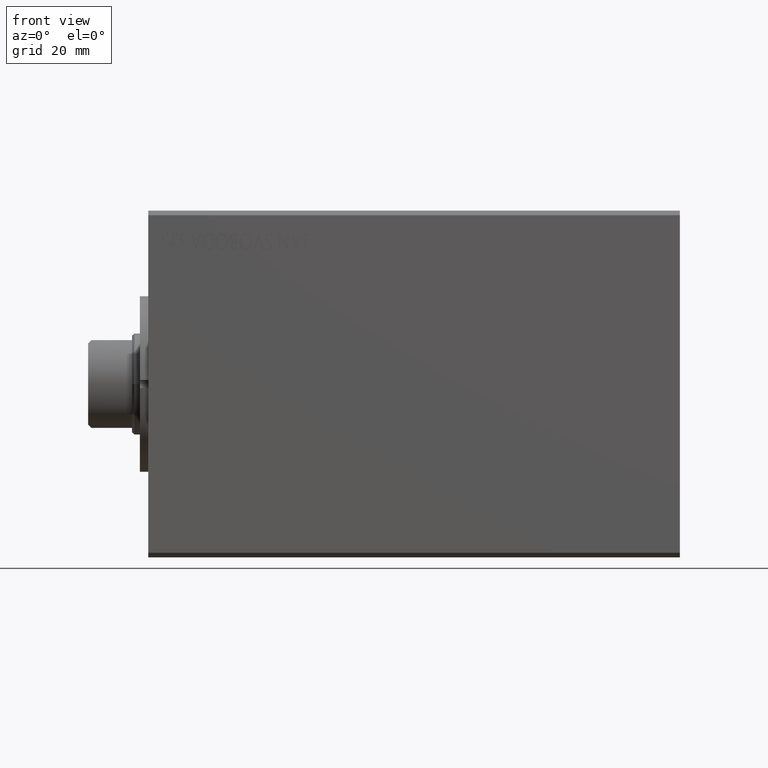
[diagram: clean part render]
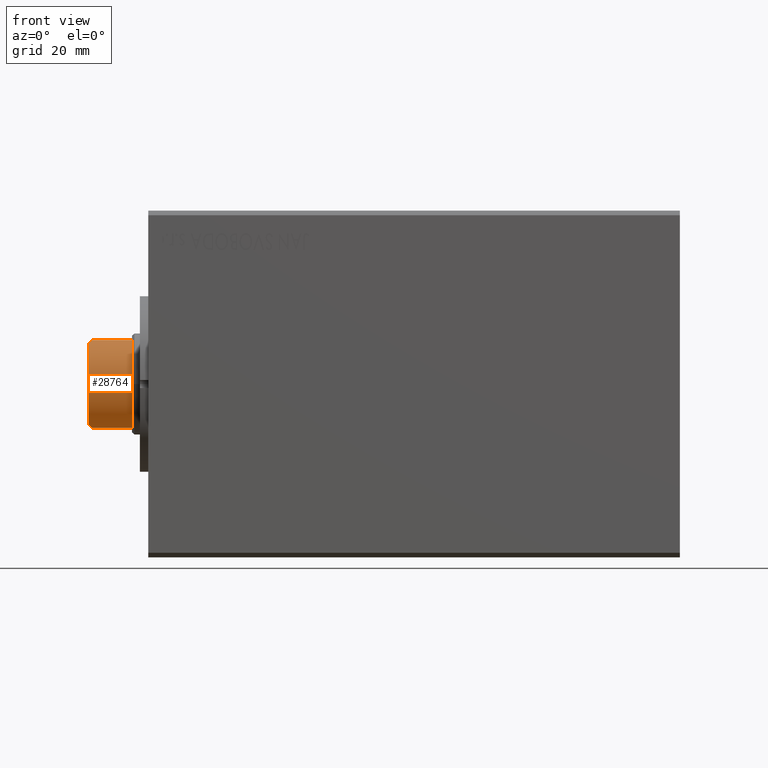
[diagram: same view with one face highlighted and labeled with its STEP entity id]
A machine part, front view. The second image highlights one B-rep face of the part: STEP entity #28764.
In plain terms, the highlighted cylindrical surface (partial cylindrical patch) has radius 10.46 mm, axis along (-1, 0, 0).
Its self-contained STEP definition (entity closure, byte-faithful):
#327 = VERTEX_POINT ( 'NONE', #6129 ) ;
#692 = CARTESIAN_POINT ( 'NONE',  ( 9.056889589612557856, 5.256118063110189809, 97.73311041038742530 ) ) ;
#1153 = EDGE_CURVE ( 'NONE', #14602, #9763, #38479, .T. ) ;
#1164 = CARTESIAN_POINT ( 'NONE',  ( 9.500000000000000000, 4.377396486497410422, 88.50000000000000000 ) ) ;
#1703 = EDGE_CURVE ( 'NONE', #327, #2591, #32569, .T. ) ;
#2591 = VERTEX_POINT ( 'NONE', #28581 ) ;
#3053 = CARTESIAN_POINT ( 'NONE',  ( -8.789999999999997371, 5.669876541865776609, 98.00000000000000000 ) ) ;
#4972 = DIRECTION ( 'NONE',  ( -0.000000000000000000, -1.815292619434271736E-16, 1.000000000000000000 ) ) ;
#5274 = DIRECTION ( 'NONE',  ( -0.000000000000000000, -1.815292619434271736E-16, 1.000000000000000000 ) ) ;
#6013 = VERTEX_POINT ( 'NONE', #17682 ) ;
#6129 = CARTESIAN_POINT ( 'NONE',  ( -9.500000000000000000, 4.377396486497410422, 88.50000000000000000 ) ) ;
#6938 =( BOUNDED_CURVE ( )  B_SPLINE_CURVE ( 3, ( #14352, #692, #20365, #30646 ),
 .UNSPECIFIED., .F., .F. ) 
 B_SPLINE_CURVE_WITH_KNOTS ( ( 4, 4 ),
 ( 2.568714171481419228, 2.709811500076702018 ),
 .UNSPECIFIED. ) 
 CURVE ( )  GEOMETRIC_REPRESENTATION_ITEM ( )  RATIONAL_B_SPLINE_CURVE ( ( 1.000000000000000000, 0.9983416499762383101, 0.9983416499762383101, 1.000000000000000000 ) ) 
 REPRESENTATION_ITEM ( '' )  );
#8318 = CARTESIAN_POINT ( 'NONE',  ( 9.500000000000000000, 4.377396486497408645, 98.00000000000000000 ) ) ;
#8556 = CARTESIAN_POINT ( 'NONE',  ( 0.000000000000000000, -1.778986767045586311E-14, 98.00000000000000000 ) ) ;
#9213 = AXIS2_PLACEMENT_3D ( 'NONE', #8556, #4972, #29092 ) ;
#9763 = VERTEX_POINT ( 'NONE', #3053 ) ;
#10729 = VECTOR ( 'NONE', #35722, 1000.000000000000000 ) ;
#10830 = CARTESIAN_POINT ( 'NONE',  ( 0.000000000000000000, -1.606533968199330726E-14, 88.50000000000001421 ) ) ;
#10878 = ORIENTED_EDGE ( 'NONE', *, *, #1153, .F. ) ;
#11246 = LINE ( 'NONE', #8318, #30025 ) ;
#11524 = AXIS2_PLACEMENT_3D ( 'NONE', #39853, #32286, #15529 ) ;
#13013 = AXIS2_PLACEMENT_3D ( 'NONE', #29182, #5274, #19573 ) ;
#14352 = CARTESIAN_POINT ( 'NONE',  ( 8.789999999999997371, 5.669876541865776609, 98.00000000000000000 ) ) ;
#14599 = DIRECTION ( 'NONE',  ( 0.000000000000000000, 1.815292619434271736E-16, -1.000000000000000000 ) ) ;
#14602 = VERTEX_POINT ( 'NONE', #21533 ) ;
#15529 = DIRECTION ( 'NONE',  ( 0.000000000000000000, -1.000000000000000000, 0.000000000000000000 ) ) ;
#16937 = CARTESIAN_POINT ( 'NONE',  ( -9.500000000000000000, 4.377396486497408645, 97.29000000000003467 ) ) ;
#17682 = CARTESIAN_POINT ( 'NONE',  ( 9.500000000000000000, 4.377396486497408645, 97.29000000000003467 ) ) ;
#18179 = DIRECTION ( 'NONE',  ( 0.000000000000000000, -1.000000000000000000, 0.000000000000000000 ) ) ;
#18918 = CYLINDRICAL_SURFACE ( 'NONE', #13013, 10.46000000000000085 ) ;
#19573 = DIRECTION ( 'NONE',  ( 0.000000000000000000, -1.000000000000000000, 0.000000000000000000 ) ) ;
#20365 = CARTESIAN_POINT ( 'NONE',  ( 9.293949384395533642, 4.824575729748616482, 97.49605061560447439 ) ) ;
#21533 = CARTESIAN_POINT ( 'NONE',  ( 8.789999999999997371, 5.669876541865776609, 98.00000000000000000 ) ) ;
#22103 = EDGE_CURVE ( 'NONE', #2591, #9763, #40628, .T. ) ;
#22908 = CIRCLE ( 'NONE', #11524, 10.46000000000000085 ) ;
#23079 = EDGE_LOOP ( 'NONE', ( #10878, #42657, #32543, #33591, #34650, #41450, #24299 ) ) ;
#24299 = ORIENTED_EDGE ( 'NONE', *, *, #22103, .T. ) ;
#24954 = AXIS2_PLACEMENT_3D ( 'NONE', #10830, #41843, #18179 ) ;
#25338 = EDGE_CURVE ( 'NONE', #14602, #6013, #6938, .T. ) ;
#28581 = CARTESIAN_POINT ( 'NONE',  ( -9.500000000000000000, 4.377396486497408645, 97.29000000000003467 ) ) ;
#28764 = ADVANCED_FACE ( 'NONE', ( #42580 ), #18918, .T. ) ;
#29092 = DIRECTION ( 'NONE',  ( 0.000000000000000000, -1.000000000000000000, 0.000000000000000000 ) ) ;
#29182 = CARTESIAN_POINT ( 'NONE',  ( 0.000000000000000000, -1.778986767045586311E-14, 98.00000000000000000 ) ) ;
#30025 = VECTOR ( 'NONE', #14599, 1000.000000000000000 ) ;
#30646 = CARTESIAN_POINT ( 'NONE',  ( 9.500000000000000000, 4.377396486497408645, 97.29000000000003467 ) ) ;
#32117 = CARTESIAN_POINT ( 'NONE',  ( -8.789999999999997371, 5.669876541865776609, 98.00000000000000000 ) ) ;
#32286 = DIRECTION ( 'NONE',  ( -0.000000000000000000, -1.815292619434271736E-16, 1.000000000000000000 ) ) ;
#32543 = ORIENTED_EDGE ( 'NONE', *, *, #40851, .T. ) ;
#32569 = LINE ( 'NONE', #36369, #10729 ) ;
#33591 = ORIENTED_EDGE ( 'NONE', *, *, #34255, .T. ) ;
#34255 = EDGE_CURVE ( 'NONE', #40820, #42186, #44197, .T. ) ;
#34650 = ORIENTED_EDGE ( 'NONE', *, *, #36732, .T. ) ;
#35465 = CARTESIAN_POINT ( 'NONE',  ( -9.056889589612559632, 5.256118063110188920, 97.73311041038742530 ) ) ;
#35722 = DIRECTION ( 'NONE',  ( -0.000000000000000000, -1.815292619434271736E-16, 1.000000000000000000 ) ) ;
#36369 = CARTESIAN_POINT ( 'NONE',  ( -9.500000000000000000, 4.377396486497408645, 98.00000000000000000 ) ) ;
#36732 = EDGE_CURVE ( 'NONE', #42186, #327, #22908, .T. ) ;
#38479 = CIRCLE ( 'NONE', #9213, 10.45999999999999908 ) ;
#39853 = CARTESIAN_POINT ( 'NONE',  ( 0.000000000000000000, -1.606533968199330726E-14, 88.50000000000001421 ) ) ;
#40628 =( BOUNDED_CURVE ( )  B_SPLINE_CURVE ( 3, ( #16937, #44172, #35465, #32117 ),
 .UNSPECIFIED., .F., .T. ) 
 B_SPLINE_CURVE_WITH_KNOTS ( ( 4, 4 ),
 ( 3.573373807102884214, 3.714471135698167004 ),
 .UNSPECIFIED. ) 
 CURVE ( )  GEOMETRIC_REPRESENTATION_ITEM ( )  RATIONAL_B_SPLINE_CURVE ( ( 1.000000000000000000, 0.9983416499762383101, 0.9983416499762383101, 1.000000000000000000 ) ) 
 REPRESENTATION_ITEM ( '' )  );
#40820 = VERTEX_POINT ( 'NONE', #1164 ) ;
#40851 = EDGE_CURVE ( 'NONE', #6013, #40820, #11246, .T. ) ;
#41450 = ORIENTED_EDGE ( 'NONE', *, *, #1703, .T. ) ;
#41843 = DIRECTION ( 'NONE',  ( -0.000000000000000000, -1.815292619434271736E-16, 1.000000000000000000 ) ) ;
#42186 = VERTEX_POINT ( 'NONE', #42902 ) ;
#42580 = FACE_OUTER_BOUND ( 'NONE', #23079, .T. ) ;
#42657 = ORIENTED_EDGE ( 'NONE', *, *, #25338, .T. ) ;
#42902 = CARTESIAN_POINT ( 'NONE',  ( 0.000000000000000000, 10.45999999999998487, 88.50000000000001421 ) ) ;
#44172 = CARTESIAN_POINT ( 'NONE',  ( -9.293949384395535418, 4.824575729748613817, 97.49605061560447439 ) ) ;
#44197 = CIRCLE ( 'NONE', #24954, 10.46000000000000085 ) ;